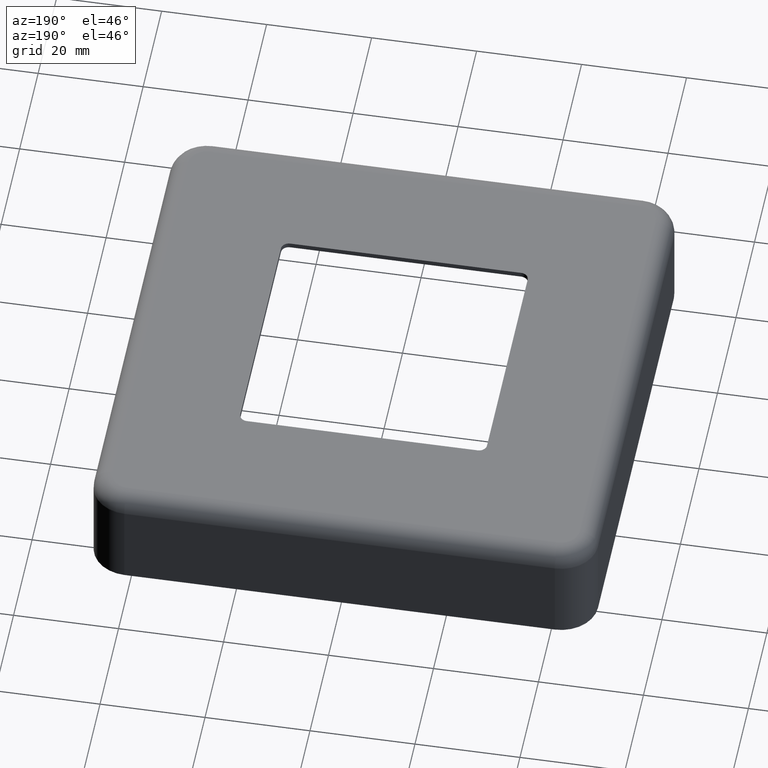
[diagram: clean part render]
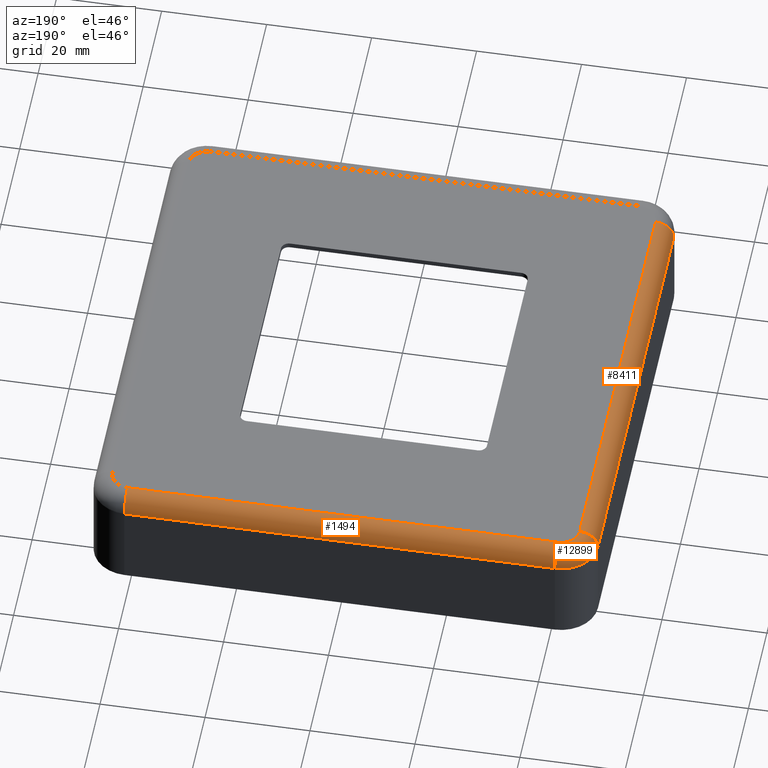
[diagram: same view with one multi-face feature highlighted, each face labeled with its STEP entity id]
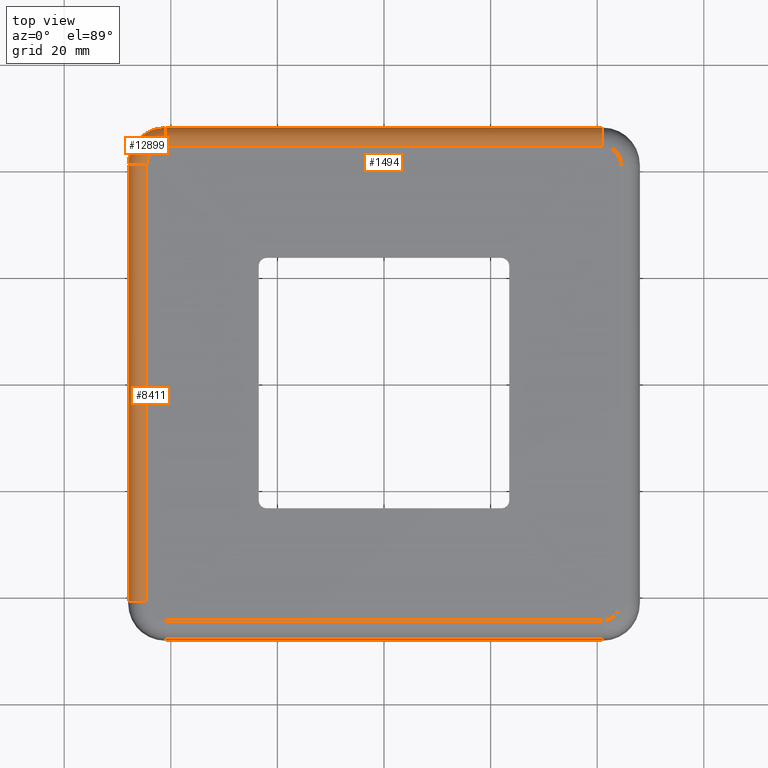
[diagram: same view with one multi-face feature highlighted, each face labeled with its STEP entity id]
A machine part, auxiliary view. The highlighted faces form ONE feature: a constant-radius fillet chain: 3 tangent blend faces with common blend radius 3.5 mm. The faces share edges in the B-rep.
A second angle (top view) of the same feature is appended — it is thin or edge-on in the first view.
Their STEP definitions:
[1] entity #1494 (Cylinder):
#322 = LINE ( 'NONE', #8896, #4974 ) ;
#411 = CARTESIAN_POINT ( 'NONE',  ( -41.00000000000001421, 44.49999999999999289, 20.00000000000000000 ) ) ;
#822 = CARTESIAN_POINT ( 'NONE',  ( 40.99999999999997868, 44.49999999999999289, 16.50000000000000000 ) ) ;
#1494 = ADVANCED_FACE ( 'NONE', ( #11229 ), #5460, .T. ) ;
#1584 = EDGE_CURVE ( 'NONE', #9200, #10765, #3138, .T. ) ;
#2074 = AXIS2_PLACEMENT_3D ( 'NONE', #11952, #13051, #14219 ) ;
#3101 = ORIENTED_EDGE ( 'NONE', *, *, #13898, .F. ) ;
#3138 = CIRCLE ( 'NONE', #7070, 3.499999999999999556 ) ;
#3308 = EDGE_LOOP ( 'NONE', ( #3101, #14250, #14609, #11866 ) ) ;
#3364 = VERTEX_POINT ( 'NONE', #411 ) ;
#3788 = CARTESIAN_POINT ( 'NONE',  ( 40.99999999999997868, 47.99999999999999289, 16.50000000000000000 ) ) ;
#4052 = AXIS2_PLACEMENT_3D ( 'NONE', #6801, #10368, #11373 ) ;
#4098 = CARTESIAN_POINT ( 'NONE',  ( -48.00000000000001421, 44.49999999999999289, 20.00000000000000000 ) ) ;
#4812 = CARTESIAN_POINT ( 'NONE',  ( -41.00000000000000711, 47.99999999999999289, 16.50000000000000000 ) ) ;
#4974 = VECTOR ( 'NONE', #13512, 1000.000000000000000 ) ;
#5256 = DIRECTION ( 'NONE',  ( -1.000000000000000000, 0.000000000000000000, 0.000000000000000000 ) ) ;
#5460 = CYLINDRICAL_SURFACE ( 'NONE', #2074, 3.499999999999999556 ) ;
#6525 = DIRECTION ( 'NONE',  ( -1.000000000000000000, 0.000000000000000000, 0.000000000000000000 ) ) ;
#6801 = CARTESIAN_POINT ( 'NONE',  ( -41.00000000000001421, 44.49999999999999289, 16.50000000000000000 ) ) ;
#7070 = AXIS2_PLACEMENT_3D ( 'NONE', #822, #6525, #13408 ) ;
#7195 = EDGE_CURVE ( 'NONE', #11588, #3364, #14025, .T. ) ;
#7380 = EDGE_CURVE ( 'NONE', #9200, #3364, #8158, .T. ) ;
#8158 = LINE ( 'NONE', #4098, #12828 ) ;
#8896 = CARTESIAN_POINT ( 'NONE',  ( 47.99999999999998579, 47.99999999999999289, 16.50000000000000000 ) ) ;
#9200 = VERTEX_POINT ( 'NONE', #13585 ) ;
#10368 = DIRECTION ( 'NONE',  ( 1.000000000000000000, 0.000000000000000000, 0.000000000000000000 ) ) ;
#10765 = VERTEX_POINT ( 'NONE', #3788 ) ;
#11229 = FACE_OUTER_BOUND ( 'NONE', #3308, .T. ) ;
#11373 = DIRECTION ( 'NONE',  ( 0.000000000000000000, 0.000000000000000000, -1.000000000000000000 ) ) ;
#11588 = VERTEX_POINT ( 'NONE', #4812 ) ;
#11866 = ORIENTED_EDGE ( 'NONE', *, *, #1584, .T. ) ;
#11952 = CARTESIAN_POINT ( 'NONE',  ( 0.000000000000000000, 44.49999999999999289, 16.50000000000000000 ) ) ;
#12828 = VECTOR ( 'NONE', #5256, 1000.000000000000000 ) ;
#13051 = DIRECTION ( 'NONE',  ( 1.000000000000000000, 0.000000000000000000, 0.000000000000000000 ) ) ;
#13408 = DIRECTION ( 'NONE',  ( 0.000000000000000000, 0.000000000000000000, 1.000000000000000000 ) ) ;
#13512 = DIRECTION ( 'NONE',  ( 1.000000000000000000, -0.000000000000000000, -0.000000000000000000 ) ) ;
#13585 = CARTESIAN_POINT ( 'NONE',  ( 40.99999999999997868, 44.49999999999999289, 20.00000000000000000 ) ) ;
#13898 = EDGE_CURVE ( 'NONE', #11588, #10765, #322, .T. ) ;
#14025 = CIRCLE ( 'NONE', #4052, 3.499999999999999556 ) ;
#14219 = DIRECTION ( 'NONE',  ( 0.000000000000000000, 0.000000000000000000, -1.000000000000000000 ) ) ;
#14250 = ORIENTED_EDGE ( 'NONE', *, *, #7195, .T. ) ;
#14609 = ORIENTED_EDGE ( 'NONE', *, *, #7380, .F. ) ;
[2] entity #12899 (Torus):
#153 = DIRECTION ( 'NONE',  ( 0.000000000000000000, -1.000000000000000000, 0.000000000000000000 ) ) ;
#411 = CARTESIAN_POINT ( 'NONE',  ( -41.00000000000001421, 44.49999999999999289, 20.00000000000000000 ) ) ;
#1030 = ORIENTED_EDGE ( 'NONE', *, *, #13445, .T. ) ;
#1403 = EDGE_CURVE ( 'NONE', #11541, #9631, #4921, .T. ) ;
#1514 = CARTESIAN_POINT ( 'NONE',  ( -44.50000000000001421, 40.99999999999999289, 16.50000000000000000 ) ) ;
#1711 = DIRECTION ( 'NONE',  ( -0.000000000000000000, 0.000000000000000000, 1.000000000000000000 ) ) ;
#2720 = EDGE_LOOP ( 'NONE', ( #10245, #14233, #13993, #1030 ) ) ;
#2794 = CARTESIAN_POINT ( 'NONE',  ( -41.00000000000001421, 40.99999999999999289, 16.50000000000000000 ) ) ;
#3364 = VERTEX_POINT ( 'NONE', #411 ) ;
#3493 = CARTESIAN_POINT ( 'NONE',  ( -48.00000000000001421, 40.99999999999999289, 16.50000000000000000 ) ) ;
#4052 = AXIS2_PLACEMENT_3D ( 'NONE', #6801, #10368, #11373 ) ;
#4123 = CARTESIAN_POINT ( 'NONE',  ( -41.00000000000001421, 40.99999999999999289, 16.50000000000000000 ) ) ;
#4812 = CARTESIAN_POINT ( 'NONE',  ( -41.00000000000000711, 47.99999999999999289, 16.50000000000000000 ) ) ;
#4921 = CIRCLE ( 'NONE', #10819, 3.499999999999999556 ) ;
#5624 = AXIS2_PLACEMENT_3D ( 'NONE', #2794, #1711, #10850 ) ;
#6425 = AXIS2_PLACEMENT_3D ( 'NONE', #6843, #10224, #7948 ) ;
#6801 = CARTESIAN_POINT ( 'NONE',  ( -41.00000000000001421, 44.49999999999999289, 16.50000000000000000 ) ) ;
#6843 = CARTESIAN_POINT ( 'NONE',  ( -41.00000000000001421, 40.99999999999999289, 20.00000000000000000 ) ) ;
#7195 = EDGE_CURVE ( 'NONE', #11588, #3364, #14025, .T. ) ;
#7307 = CIRCLE ( 'NONE', #6425, 3.500000000000003109 ) ;
#7948 = DIRECTION ( 'NONE',  ( 1.000000000000000000, 0.000000000000000000, 0.000000000000000000 ) ) ;
#8054 = AXIS2_PLACEMENT_3D ( 'NONE', #4123, #13144, #8715 ) ;
#8715 = DIRECTION ( 'NONE',  ( 1.000000000000000000, 0.000000000000000000, 0.000000000000000000 ) ) ;
#9548 = DIRECTION ( 'NONE',  ( 0.000000000000000000, 0.000000000000000000, -1.000000000000000000 ) ) ;
#9631 = VERTEX_POINT ( 'NONE', #3493 ) ;
#10184 = EDGE_CURVE ( 'NONE', #11588, #9631, #12207, .T. ) ;
#10224 = DIRECTION ( 'NONE',  ( 0.000000000000000000, -0.000000000000000000, -1.000000000000000000 ) ) ;
#10245 = ORIENTED_EDGE ( 'NONE', *, *, #7195, .F. ) ;
#10368 = DIRECTION ( 'NONE',  ( 1.000000000000000000, 0.000000000000000000, 0.000000000000000000 ) ) ;
#10460 = CARTESIAN_POINT ( 'NONE',  ( -44.50000000000001421, 40.99999999999998579, 20.00000000000000000 ) ) ;
#10819 = AXIS2_PLACEMENT_3D ( 'NONE', #1514, #153, #9548 ) ;
#10850 = DIRECTION ( 'NONE',  ( 1.000000000000000000, 0.000000000000000000, 0.000000000000000000 ) ) ;
#11098 = FACE_OUTER_BOUND ( 'NONE', #2720, .T. ) ;
#11373 = DIRECTION ( 'NONE',  ( 0.000000000000000000, 0.000000000000000000, -1.000000000000000000 ) ) ;
#11541 = VERTEX_POINT ( 'NONE', #10460 ) ;
#11588 = VERTEX_POINT ( 'NONE', #4812 ) ;
#12207 = CIRCLE ( 'NONE', #5624, 6.999999999999999112 ) ;
#12899 = ADVANCED_FACE ( 'NONE', ( #11098 ), #14700, .T. ) ;
#13144 = DIRECTION ( 'NONE',  ( -0.000000000000000000, 0.000000000000000000, 1.000000000000000000 ) ) ;
#13445 = EDGE_CURVE ( 'NONE', #11541, #3364, #7307, .T. ) ;
#13993 = ORIENTED_EDGE ( 'NONE', *, *, #1403, .F. ) ;
#14025 = CIRCLE ( 'NONE', #4052, 3.499999999999999556 ) ;
#14233 = ORIENTED_EDGE ( 'NONE', *, *, #10184, .T. ) ;
#14700 = TOROIDAL_SURFACE ( 'NONE', #8054, 3.500000000000000000, 3.500000000000000000 ) ;
[3] entity #8411 (Cylinder):
#153 = DIRECTION ( 'NONE',  ( 0.000000000000000000, -1.000000000000000000, 0.000000000000000000 ) ) ;
#796 = CARTESIAN_POINT ( 'NONE',  ( -44.50000000000000000, -48.00000000000000711, 20.00000000000000000 ) ) ;
#837 = EDGE_CURVE ( 'NONE', #11541, #11902, #5093, .T. ) ;
#1075 = VECTOR ( 'NONE', #12722, 1000.000000000000000 ) ;
#1080 = DIRECTION ( 'NONE',  ( -1.445602896647339163E-16, 1.000000000000000000, 0.000000000000000000 ) ) ;
#1403 = EDGE_CURVE ( 'NONE', #11541, #9631, #4921, .T. ) ;
#1514 = CARTESIAN_POINT ( 'NONE',  ( -44.50000000000001421, 40.99999999999999289, 16.50000000000000000 ) ) ;
#1621 = ORIENTED_EDGE ( 'NONE', *, *, #837, .F. ) ;
#3423 = EDGE_LOOP ( 'NONE', ( #13511, #5060, #1621, #14023 ) ) ;
#3493 = CARTESIAN_POINT ( 'NONE',  ( -48.00000000000001421, 40.99999999999999289, 16.50000000000000000 ) ) ;
#4921 = CIRCLE ( 'NONE', #10819, 3.499999999999999556 ) ;
#5060 = ORIENTED_EDGE ( 'NONE', *, *, #8013, .T. ) ;
#5093 = LINE ( 'NONE', #796, #14645 ) ;
#5575 = CARTESIAN_POINT ( 'NONE',  ( -44.50000000000000711, -6.432932890080659905E-15, 16.50000000000000000 ) ) ;
#6476 = FACE_OUTER_BOUND ( 'NONE', #3423, .T. ) ;
#6580 = AXIS2_PLACEMENT_3D ( 'NONE', #5575, #1080, #13985 ) ;
#7776 = CARTESIAN_POINT ( 'NONE',  ( -44.50000000000000000, -41.00000000000000711, 16.50000000000000000 ) ) ;
#8007 = CARTESIAN_POINT ( 'NONE',  ( -48.00000000000001421, 47.99999999999999289, 16.50000000000000000 ) ) ;
#8013 = EDGE_CURVE ( 'NONE', #13730, #11902, #11899, .T. ) ;
#8411 = ADVANCED_FACE ( 'NONE', ( #6476 ), #14049, .T. ) ;
#9548 = DIRECTION ( 'NONE',  ( 0.000000000000000000, 0.000000000000000000, -1.000000000000000000 ) ) ;
#9631 = VERTEX_POINT ( 'NONE', #3493 ) ;
#10399 = CARTESIAN_POINT ( 'NONE',  ( -44.50000000000000000, -41.00000000000000711, 20.00000000000000000 ) ) ;
#10460 = CARTESIAN_POINT ( 'NONE',  ( -44.50000000000001421, 40.99999999999998579, 20.00000000000000000 ) ) ;
#10819 = AXIS2_PLACEMENT_3D ( 'NONE', #1514, #153, #9548 ) ;
#11118 = EDGE_CURVE ( 'NONE', #13730, #9631, #13280, .T. ) ;
#11541 = VERTEX_POINT ( 'NONE', #10460 ) ;
#11899 = CIRCLE ( 'NONE', #11978, 3.499999999999999556 ) ;
#11902 = VERTEX_POINT ( 'NONE', #10399 ) ;
#11963 = CARTESIAN_POINT ( 'NONE',  ( -48.00000000000000000, -41.00000000000000000, 16.50000000000000000 ) ) ;
#11978 = AXIS2_PLACEMENT_3D ( 'NONE', #7776, #13500, #14666 ) ;
#12424 = DIRECTION ( 'NONE',  ( 1.445602896647339163E-16, -1.000000000000000000, 0.000000000000000000 ) ) ;
#12722 = DIRECTION ( 'NONE',  ( -1.445602896647339163E-16, 1.000000000000000000, -0.000000000000000000 ) ) ;
#13280 = LINE ( 'NONE', #8007, #1075 ) ;
#13500 = DIRECTION ( 'NONE',  ( 0.000000000000000000, 1.000000000000000000, -0.000000000000000000 ) ) ;
#13511 = ORIENTED_EDGE ( 'NONE', *, *, #11118, .F. ) ;
#13730 = VERTEX_POINT ( 'NONE', #11963 ) ;
#13985 = DIRECTION ( 'NONE',  ( -1.000000000000000000, -1.445602896647337191E-16, 0.000000000000000000 ) ) ;
#14023 = ORIENTED_EDGE ( 'NONE', *, *, #1403, .T. ) ;
#14049 = CYLINDRICAL_SURFACE ( 'NONE', #6580, 3.500000000000003109 ) ;
#14645 = VECTOR ( 'NONE', #12424, 1000.000000000000000 ) ;
#14666 = DIRECTION ( 'NONE',  ( 0.000000000000000000, 0.000000000000000000, 1.000000000000000000 ) ) ;